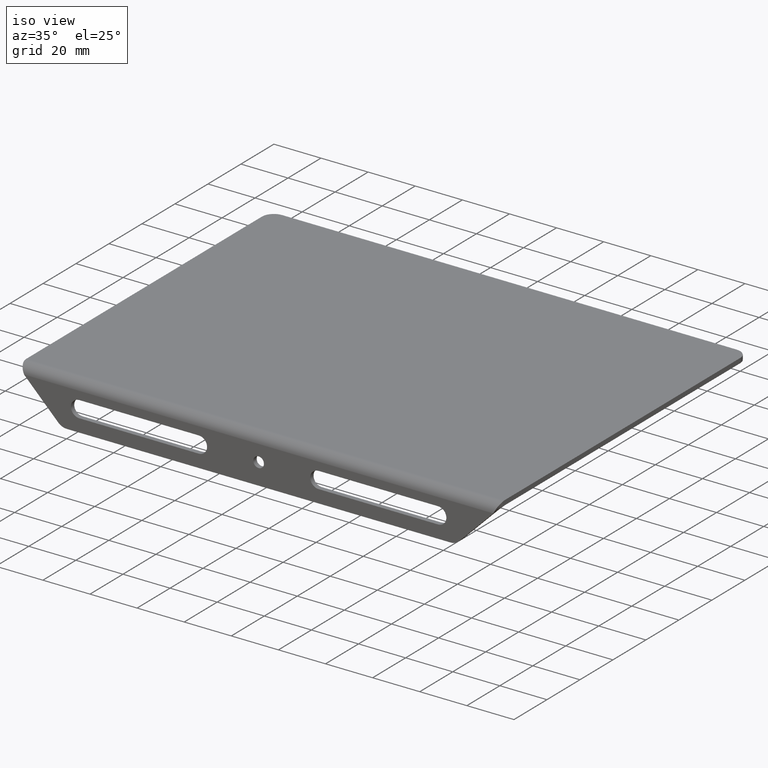
[diagram: clean part render]
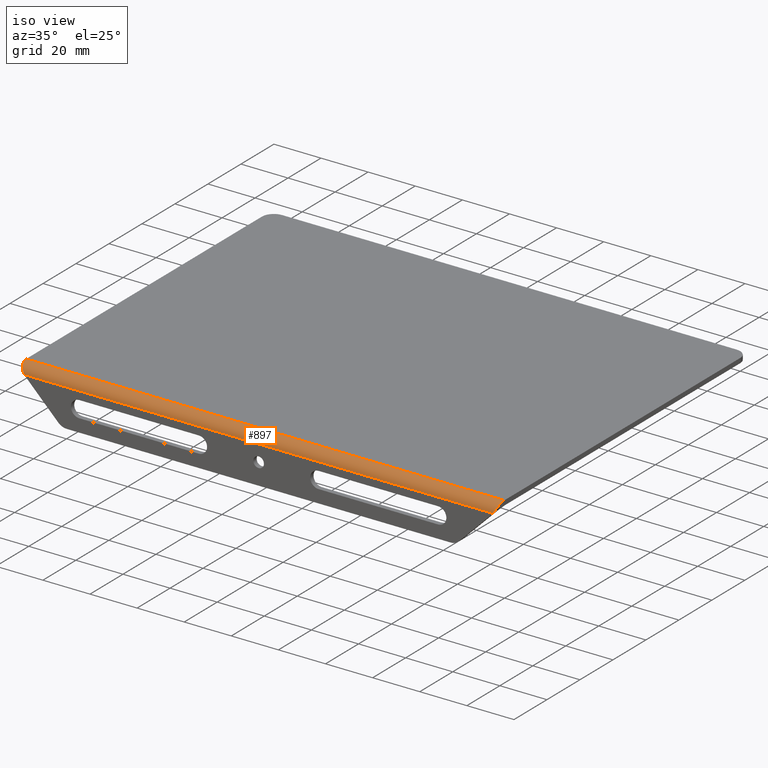
[diagram: same view with one face highlighted and labeled with its STEP entity id]
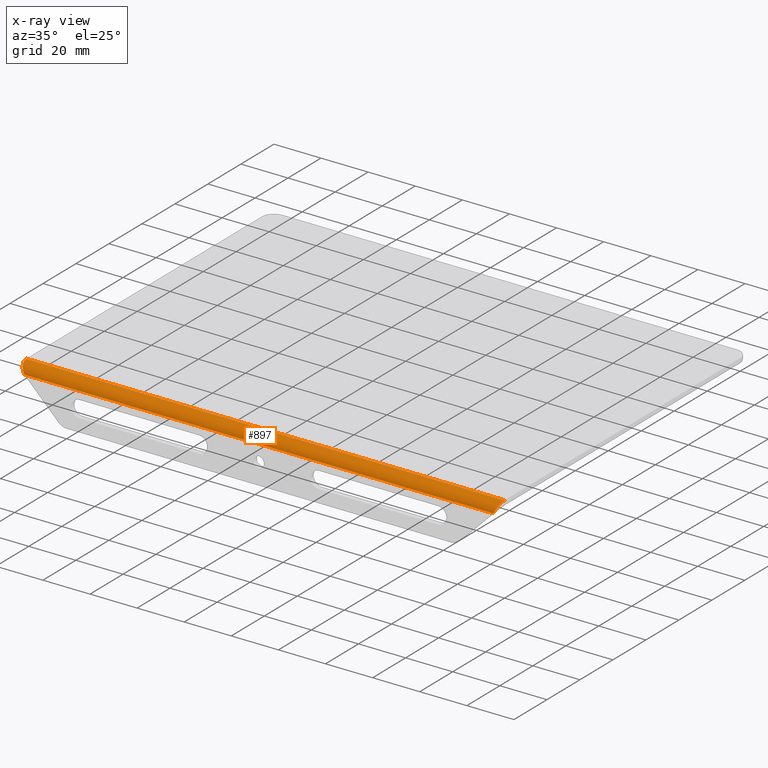
[diagram: x-ray of the same camera — body ghosted, the highlighted face saturated]
A machine part, iso view. The second image highlights one B-rep face of the part: STEP entity #897.
The next image is the same camera in x-ray: the body ghosted, the highlighted face saturated — about 0% of this face is hidden behind the body in this view.
In plain terms, the highlighted cylindrical surface (edge-blend (fillet) strip) has radius 4 mm, axis along (-1, -0, -0).
Its self-contained STEP definition (entity closure, byte-faithful):
#22 = EDGE_CURVE ( 'NONE', #717, #917, #496, .T. ) ;
#48 = CARTESIAN_POINT ( 'NONE',  ( 1.999999999999974021, 0.000000000000000000, -4.000000000000000000 ) ) ;
#50 = CYLINDRICAL_SURFACE ( 'NONE', #780, 4.000000000000000000 ) ;
#52 = ORIENTED_EDGE ( 'NONE', *, *, #828, .F. ) ;
#70 = CARTESIAN_POINT ( 'NONE',  ( 0.3795479008074179594, 1.049987808574508019, -0.7590958016148465770 ) ) ;
#93 = CARTESIAN_POINT ( 'NONE',  ( 201.2000000000000171, 0.000000000000000000, -4.000000000000000000 ) ) ;
#111 = VERTEX_POINT ( 'NONE', #669 ) ;
#114 = DIRECTION ( 'NONE',  ( -1.000000000000000000, -0.000000000000000000, -0.000000000000000000 ) ) ;
#133 = DIRECTION ( 'NONE',  ( -1.000000000000000000, -0.000000000000000000, -0.000000000000000000 ) ) ;
#145 = EDGE_CURVE ( 'NONE', #598, #111, #578, .T. ) ;
#223 = DIRECTION ( 'NONE',  ( -1.000000000000000000, -1.225259087783363897E-16, -0.000000000000000000 ) ) ;
#246 = ORIENTED_EDGE ( 'NONE', *, *, #22, .T. ) ;
#247 = EDGE_CURVE ( 'NONE', #499, #758, #573, .T. ) ;
#258 = AXIS2_PLACEMENT_3D ( 'NONE', #825, #916, #684 ) ;
#269 = CARTESIAN_POINT ( 'NONE',  ( 203.1999999999999886, 3.999999999999995559, 0.000000000000000000 ) ) ;
#270 = CARTESIAN_POINT ( 'NONE',  ( 201.2000000000000171, 0.000000000000000000, -4.000000000000000000 ) ) ;
#291 = EDGE_LOOP ( 'NONE', ( #246, #432, #968, #868, #838, #52 ) ) ;
#355 = AXIS2_PLACEMENT_3D ( 'NONE', #616, #223, #601 ) ;
#382 = LINE ( 'NONE', #532, #798 ) ;
#388 = CIRCLE ( 'NONE', #355, 4.000000000000000888 ) ;
#408 = CARTESIAN_POINT ( 'NONE',  ( 202.0952697851299149, -1.446782752169102739E-15, -2.209460429740206067 ) ) ;
#412 = CARTESIAN_POINT ( 'NONE',  ( 203.0999999999999943, 3.999999999999995559, 0.000000000000000000 ) ) ;
#432 = ORIENTED_EDGE ( 'NONE', *, *, #724, .F. ) ;
#444 = FACE_OUTER_BOUND ( 'NONE', #291, .T. ) ;
#452 = CARTESIAN_POINT ( 'NONE',  ( 1.999999999999974021, 0.000000000000000000, -4.000000000000000000 ) ) ;
#496 =( BOUNDED_CURVE ( )  B_SPLINE_CURVE ( 3, ( #93, #408, #650, #557 ),
 .UNSPECIFIED., .F., .T. ) 
 B_SPLINE_CURVE_WITH_KNOTS ( ( 4, 4 ),
 ( 1.570796326794896780, 2.824032224298274940 ),
 .UNSPECIFIED. ) 
 CURVE ( )  GEOMETRIC_REPRESENTATION_ITEM ( )  RATIONAL_B_SPLINE_CURVE ( ( 1.000000000000000000, 0.8733436007089571129, 0.8733436007089571129, 1.000000000000000000 ) ) 
 REPRESENTATION_ITEM ( '' )  );
#499 = VERTEX_POINT ( 'NONE', #574 ) ;
#532 = CARTESIAN_POINT ( 'NONE',  ( 203.1999999999999886, 0.000000000000000000, -4.000000000000000000 ) ) ;
#557 = CARTESIAN_POINT ( 'NONE',  ( 203.0999999999999943, 2.751000400320329220, -0.1999999999999970968 ) ) ;
#562 = CIRCLE ( 'NONE', #258, 4.000000000000000000 ) ;
#573 =( BOUNDED_CURVE ( )  B_SPLINE_CURVE ( 3, ( #922, #70, #693, #48 ),
 .UNSPECIFIED., .F., .T. ) 
 B_SPLINE_CURVE_WITH_KNOTS ( ( 4, 4 ),
 ( 0.3175604292909354753, 1.570796326794896780 ),
 .UNSPECIFIED. ) 
 CURVE ( )  GEOMETRIC_REPRESENTATION_ITEM ( )  RATIONAL_B_SPLINE_CURVE ( ( 1.000000000000000000, 0.8733436007088430930, 0.8733436007088430930, 1.000000000000000000 ) ) 
 REPRESENTATION_ITEM ( '' )  );
#574 = CARTESIAN_POINT ( 'NONE',  ( 0.09999999999980882515, 2.751000400322565209, -0.1999999999992623234 ) ) ;
#578 = LINE ( 'NONE', #269, #776 ) ;
#598 = VERTEX_POINT ( 'NONE', #412 ) ;
#601 = DIRECTION ( 'NONE',  ( -1.219727444046192242E-16, 1.000000000000000000, 7.155734338404327687E-15 ) ) ;
#616 = CARTESIAN_POINT ( 'NONE',  ( 0.09999999999998898659, 3.999999999999999112, -4.000000000000000000 ) ) ;
#650 = CARTESIAN_POINT ( 'NONE',  ( 202.8204520991918685, 1.049987808573525028, -0.7590958016162676625 ) ) ;
#669 = CARTESIAN_POINT ( 'NONE',  ( 0.09999999999998898659, 3.999999999999995559, 0.000000000000000000 ) ) ;
#684 = DIRECTION ( 'NONE',  ( 0.000000000000000000, -8.673617379884035472E-16, 1.000000000000000000 ) ) ;
#693 = CARTESIAN_POINT ( 'NONE',  ( 1.104730214869611649, -2.879407238078580355E-16, -2.209460429739252607 ) ) ;
#710 = CARTESIAN_POINT ( 'NONE',  ( 203.0999999999999943, 2.751000400320329220, -0.1999999999999970968 ) ) ;
#717 = VERTEX_POINT ( 'NONE', #270 ) ;
#724 = EDGE_CURVE ( 'NONE', #598, #917, #562, .T. ) ;
#758 = VERTEX_POINT ( 'NONE', #452 ) ;
#776 = VECTOR ( 'NONE', #114, 1000.000000000000000 ) ;
#780 = AXIS2_PLACEMENT_3D ( 'NONE', #837, #133, #873 ) ;
#798 = VECTOR ( 'NONE', #842, 1000.000000000000000 ) ;
#825 = CARTESIAN_POINT ( 'NONE',  ( 203.0999999999999943, 3.999999999999999112, -4.000000000000000000 ) ) ;
#828 = EDGE_CURVE ( 'NONE', #717, #758, #382, .T. ) ;
#837 = CARTESIAN_POINT ( 'NONE',  ( 203.1999999999999886, 3.999999999999999112, -4.000000000000000000 ) ) ;
#838 = ORIENTED_EDGE ( 'NONE', *, *, #247, .T. ) ;
#842 = DIRECTION ( 'NONE',  ( -1.000000000000000000, -0.000000000000000000, -0.000000000000000000 ) ) ;
#844 = EDGE_CURVE ( 'NONE', #499, #111, #388, .T. ) ;
#868 = ORIENTED_EDGE ( 'NONE', *, *, #844, .F. ) ;
#873 = DIRECTION ( 'NONE',  ( 0.000000000000000000, 0.000000000000000000, 1.000000000000000000 ) ) ;
#897 = ADVANCED_FACE ( 'NONE', ( #444 ), #50, .T. ) ;
#916 = DIRECTION ( 'NONE',  ( 1.000000000000000000, 0.000000000000000000, 0.000000000000000000 ) ) ;
#917 = VERTEX_POINT ( 'NONE', #710 ) ;
#922 = CARTESIAN_POINT ( 'NONE',  ( 0.09999999999980882515, 2.751000400322565209, -0.1999999999992623234 ) ) ;
#968 = ORIENTED_EDGE ( 'NONE', *, *, #145, .T. ) ;